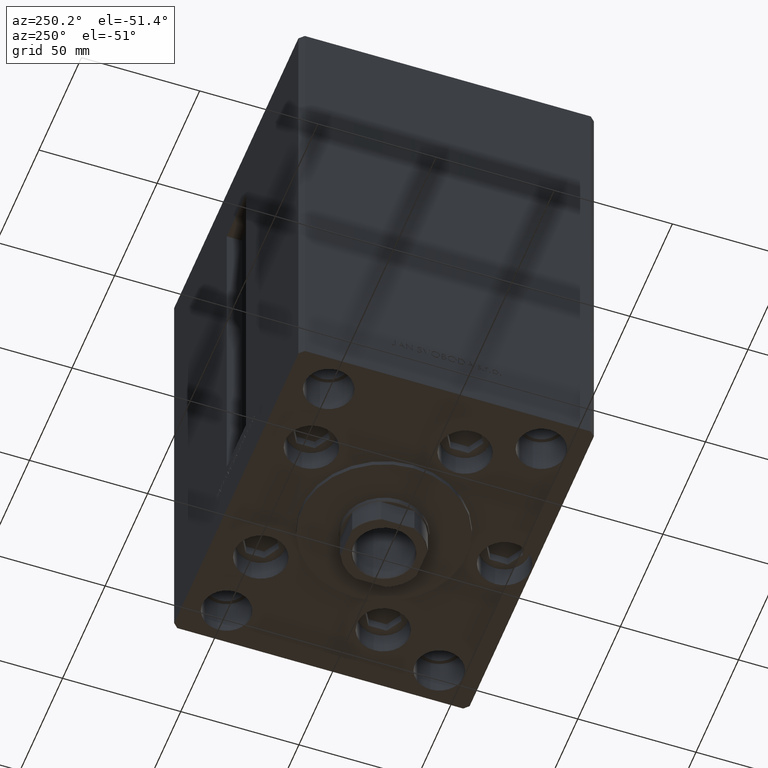
[diagram: clean part render]
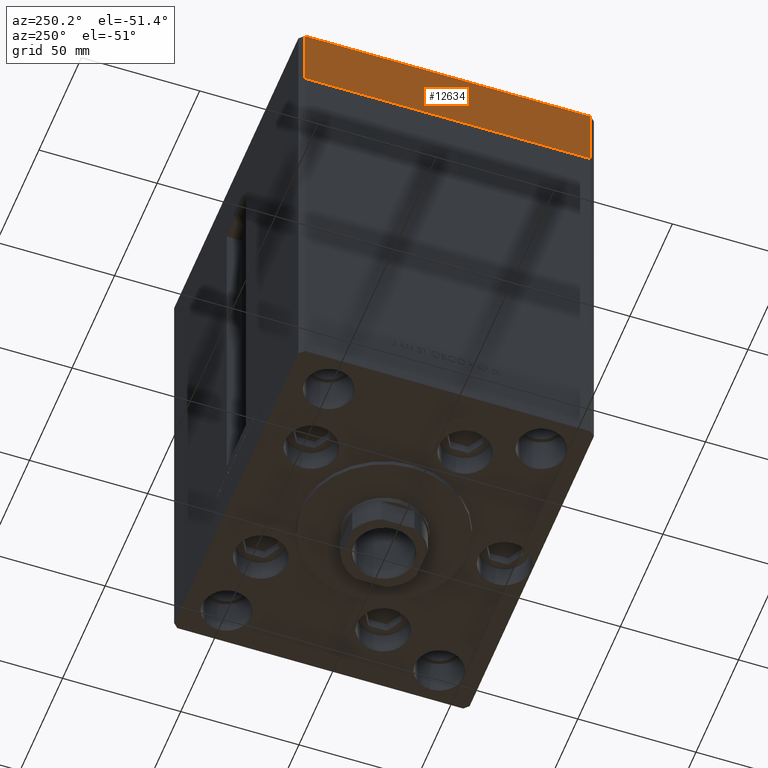
[diagram: same view with one face highlighted and labeled with its STEP entity id]
A machine part, auxiliary view. The second image highlights one B-rep face of the part: STEP entity #12634.
In plain terms, the highlighted planar face has unit normal (-1, 0, 0).
Its self-contained STEP definition (entity closure, byte-faithful):
#252 = CARTESIAN_POINT ( 'NONE',  ( -75.00000000000001421, 60.49999999999997158, -27.00000000000000000 ) ) ;
#4645 = EDGE_LOOP ( 'NONE', ( #17905, #13700, #36499, #47888 ) ) ;
#4724 = VECTOR ( 'NONE', #43324, 1000.000000000000000 ) ;
#7846 = DIRECTION ( 'NONE',  ( -1.000000000000000000, 0.000000000000000000, 0.000000000000000000 ) ) ;
#8042 = EDGE_CURVE ( 'NONE', #20849, #26841, #17991, .T. ) ;
#8950 = CARTESIAN_POINT ( 'NONE',  ( -75.00000000000001421, -60.50000000000001421, -27.00000000000000000 ) ) ;
#10908 = DIRECTION ( 'NONE',  ( 0.000000000000000000, -1.000000000000000000, 0.000000000000000000 ) ) ;
#11262 = VECTOR ( 'NONE', #10908, 1000.000000000000000 ) ;
#12634 = ADVANCED_FACE ( 'NONE', ( #45180 ), #41488, .T. ) ;
#13700 = ORIENTED_EDGE ( 'NONE', *, *, #40288, .F. ) ;
#14071 = CARTESIAN_POINT ( 'NONE',  ( -75.00000000000001421, 60.49999999999997158, -27.00000000000000000 ) ) ;
#14093 = EDGE_CURVE ( 'NONE', #28034, #26841, #42844, .T. ) ;
#16481 = CARTESIAN_POINT ( 'NONE',  ( -75.00000000000001421, -60.50000000000001421, -27.00000000000000000 ) ) ;
#17905 = ORIENTED_EDGE ( 'NONE', *, *, #8042, .F. ) ;
#17991 = LINE ( 'NONE', #21949, #36161 ) ;
#20849 = VERTEX_POINT ( 'NONE', #41383 ) ;
#20958 = VECTOR ( 'NONE', #47455, 1000.000000000000000 ) ;
#21941 = EDGE_CURVE ( 'NONE', #27475, #28034, #37387, .T. ) ;
#21949 = CARTESIAN_POINT ( 'NONE',  ( -75.00000000000001421, 60.49999999999997158, 0.000000000000000000 ) ) ;
#22878 = AXIS2_PLACEMENT_3D ( 'NONE', #30866, #7846, #45928 ) ;
#26638 = CARTESIAN_POINT ( 'NONE',  ( -75.00000000000001421, -60.50000000000001421, 0.000000000000000000 ) ) ;
#26841 = VERTEX_POINT ( 'NONE', #26638 ) ;
#27475 = VERTEX_POINT ( 'NONE', #47813 ) ;
#28034 = VERTEX_POINT ( 'NONE', #16481 ) ;
#30866 = CARTESIAN_POINT ( 'NONE',  ( -75.00000000000001421, 60.49999999999997158, -27.00000000000000000 ) ) ;
#36161 = VECTOR ( 'NONE', #48158, 1000.000000000000000 ) ;
#36499 = ORIENTED_EDGE ( 'NONE', *, *, #21941, .T. ) ;
#37387 = LINE ( 'NONE', #252, #11262 ) ;
#39797 = LINE ( 'NONE', #14071, #20958 ) ;
#40288 = EDGE_CURVE ( 'NONE', #27475, #20849, #39797, .T. ) ;
#41383 = CARTESIAN_POINT ( 'NONE',  ( -75.00000000000001421, 60.49999999999997158, 0.000000000000000000 ) ) ;
#41488 = PLANE ( 'NONE',  #22878 ) ;
#42844 = LINE ( 'NONE', #8950, #4724 ) ;
#43324 = DIRECTION ( 'NONE',  ( 0.000000000000000000, 0.000000000000000000, 1.000000000000000000 ) ) ;
#45180 = FACE_OUTER_BOUND ( 'NONE', #4645, .T. ) ;
#45928 = DIRECTION ( 'NONE',  ( 0.000000000000000000, 0.000000000000000000, 1.000000000000000000 ) ) ;
#47455 = DIRECTION ( 'NONE',  ( 0.000000000000000000, 0.000000000000000000, 1.000000000000000000 ) ) ;
#47813 = CARTESIAN_POINT ( 'NONE',  ( -75.00000000000001421, 60.49999999999997158, -27.00000000000000000 ) ) ;
#47888 = ORIENTED_EDGE ( 'NONE', *, *, #14093, .T. ) ;
#48158 = DIRECTION ( 'NONE',  ( 0.000000000000000000, -1.000000000000000000, 0.000000000000000000 ) ) ;